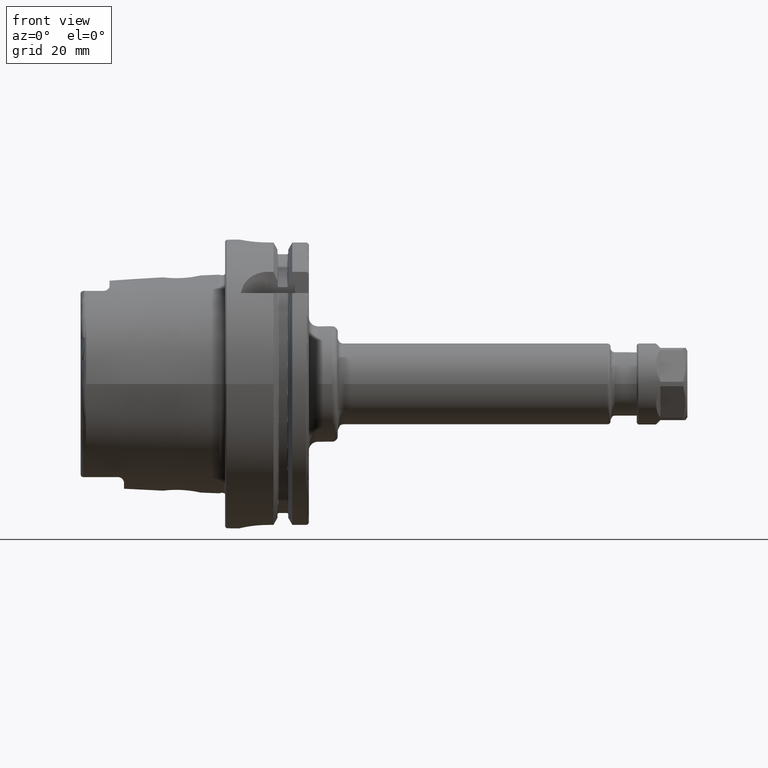
[diagram: clean part render]
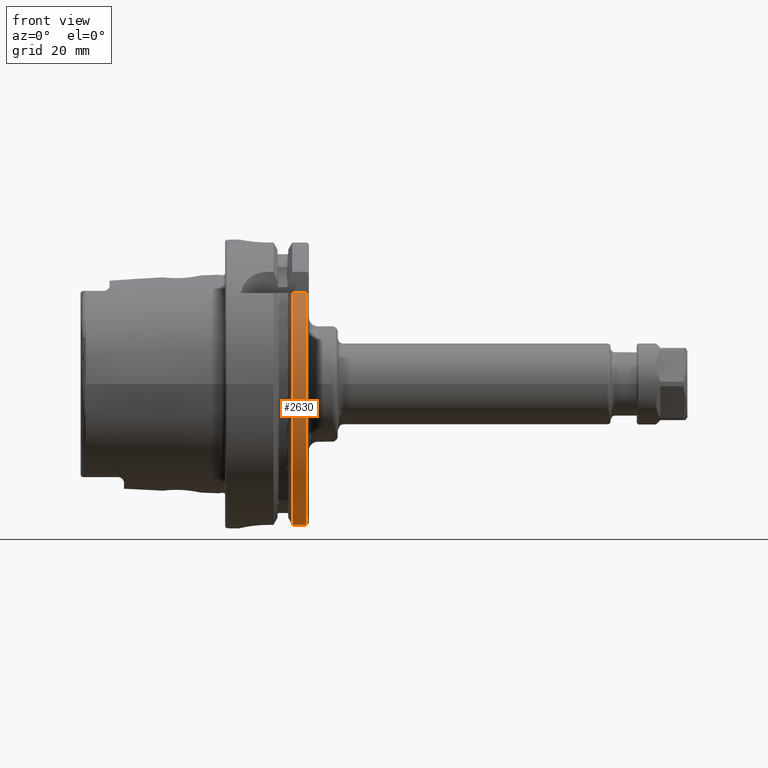
[diagram: same view with one face highlighted and labeled with its STEP entity id]
A machine part, front view. The second image highlights one B-rep face of the part: STEP entity #2630.
In plain terms, the highlighted cylindrical surface (partial cylindrical patch) has radius 50 mm, axis along (1, 0, 0).
Its self-contained STEP definition (entity closure, byte-faithful):
#345=FACE_OUTER_BOUND('',#507,.T.);
#507=EDGE_LOOP('',(#2087,#2088,#2089,#2090));
#665=LINE('',#4972,#807);
#681=LINE('',#5175,#823);
#807=VECTOR('',#3416,10.);
#823=VECTOR('',#3484,10.);
#971=CIRCLE('',#2942,50.);
#973=CIRCLE('',#2946,50.);
#1188=VERTEX_POINT('',#4967);
#1189=VERTEX_POINT('',#4971);
#1219=VERTEX_POINT('',#5163);
#1220=VERTEX_POINT('',#5174);
#1488=EDGE_CURVE('',#1189,#1188,#665,.T.);
#1533=EDGE_CURVE('',#1220,#1219,#681,.T.);
#1550=EDGE_CURVE('',#1189,#1219,#971,.T.);
#1553=EDGE_CURVE('',#1188,#1220,#973,.T.);
#2087=ORIENTED_EDGE('',*,*,#1488,.T.);
#2088=ORIENTED_EDGE('',*,*,#1553,.T.);
#2089=ORIENTED_EDGE('',*,*,#1533,.T.);
#2090=ORIENTED_EDGE('',*,*,#1550,.F.);
#2544=CYLINDRICAL_SURFACE('',#2945,50.);
#2630=ADVANCED_FACE('',(#345),#2544,.T.);
#2942=AXIS2_PLACEMENT_3D('',#5239,#3511,#3512);
#2945=AXIS2_PLACEMENT_3D('',#5244,#3518,#3519);
#2946=AXIS2_PLACEMENT_3D('',#5245,#3520,#3521);
#3416=DIRECTION('',(-1.,0.,0.));
#3484=DIRECTION('',(1.,0.,0.));
#3511=DIRECTION('center_axis',(1.,0.,0.));
#3512=DIRECTION('ref_axis',(0.,0.,-1.));
#3518=DIRECTION('center_axis',(1.,0.,0.));
#3519=DIRECTION('ref_axis',(0.,-0.94483222014474,-0.327554691275153));
#3520=DIRECTION('center_axis',(1.,0.,0.));
#3521=DIRECTION('ref_axis',(0.,0.,-1.));
#4967=CARTESIAN_POINT('',(23.2620290209214,-38.8297566307078,31.5));
#4971=CARTESIAN_POINT('',(28.,-38.8297566307078,31.5));
#4972=CARTESIAN_POINT('',(25.6310145104607,-38.8297566307078,31.5));
#5163=CARTESIAN_POINT('',(28.,-11.,-48.7749935930288));
#5174=CARTESIAN_POINT('',(23.2620290209214,-11.,-48.7749935930288));
#5175=CARTESIAN_POINT('',(25.6310145104607,-11.,-48.7749935930288));
#5239=CARTESIAN_POINT('Origin',(28.,0.,0.));
#5244=CARTESIAN_POINT('Origin',(25.6310145104607,0.,0.));
#5245=CARTESIAN_POINT('Origin',(23.2620290209214,0.,0.));